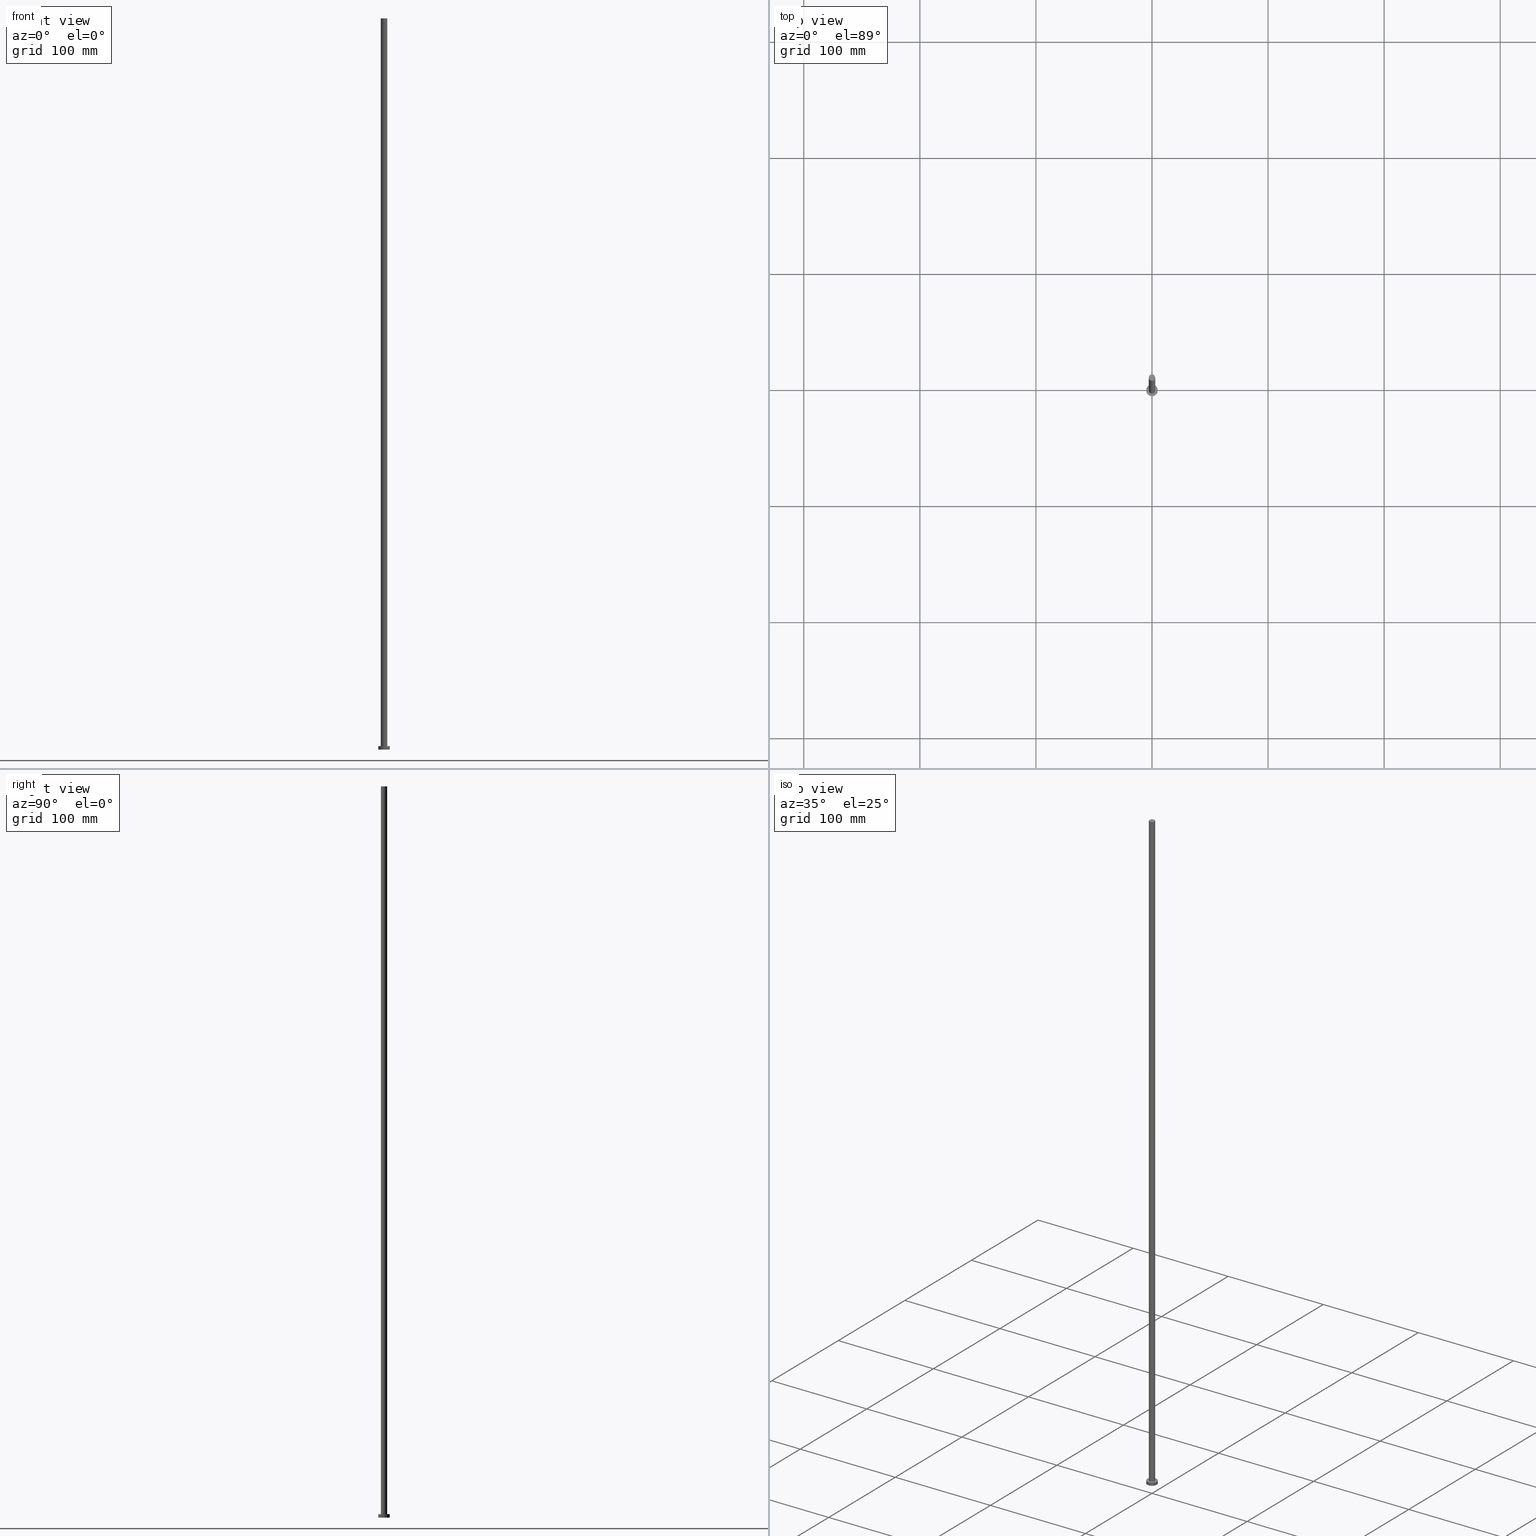
[diagram: canonical four-view strip — front | top / right | iso, engineering-drawing reading convention]
A machine part, canonical four-view strip (front | top / right | iso — engineering-drawing reading convention). The complete STEP part file that produces these views, byte-faithful:
ISO-10303-21;
HEADER;
FILE_DESCRIPTION (( 'STEP AP203' ),
    '1' );
FILE_NAME ('1a65.STEP',
    '2023-02-12T12:20:35',
    ( '' ),
    ( '' ),
    'SwSTEP 2.0',
    'SolidWorks 2019',
    '' );
FILE_SCHEMA (( 'CONFIG_CONTROL_DESIGN' ));
ENDSEC;

DATA;
#1 =( LENGTH_UNIT ( ) NAMED_UNIT ( * ) SI_UNIT ( .MILLI., .METRE. ) );
#2 = VERTEX_POINT ( 'NONE', #206 ) ;
#3 = CIRCLE ( 'NONE', #85, 2.750000000000000000 ) ;
#4 = APPROVAL_PERSON_ORGANIZATION ( #56, #79, #151 ) ;
#5 = DIRECTION ( 'NONE',  ( 1.000000000000000000, 0.000000000000000000, 0.000000000000000000 ) ) ;
#6 = ORIENTED_EDGE ( 'NONE', *, *, #58, .F. ) ;
#7 = APPROVAL ( #190, 'NEUR�EN�' ) ;
#8 = PRODUCT_DEFINITION_SHAPE ( 'NONE', 'NONE',  #134 ) ;
#9 = FACE_OUTER_BOUND ( 'NONE', #200, .T. ) ;
#10 = ORIENTED_EDGE ( 'NONE', *, *, #245, .F. ) ;
#11 = DIRECTION ( 'NONE',  ( 1.000000000000000000, 0.000000000000000000, -0.000000000000000000 ) ) ;
#12 = APPROVAL_DATE_TIME ( #18, #241 ) ;
#13 = AXIS2_PLACEMENT_3D ( 'NONE', #162, #247, #73 ) ;
#14 = DIRECTION ( 'NONE',  ( -0.000000000000000000, -0.000000000000000000, -1.000000000000000000 ) ) ;
#15 = APPROVAL_ROLE ( '' ) ;
#16 = DIRECTION ( 'NONE',  ( 1.000000000000000000, 0.000000000000000000, 0.000000000000000000 ) ) ;
#17 = APPROVAL_PERSON_ORGANIZATION ( #249, #241, #15 ) ;
#18 = DATE_AND_TIME ( #159, #165 ) ;
#19 = ORIENTED_EDGE ( 'NONE', *, *, #24, .F. ) ;
#20 = CALENDAR_DATE ( 2023, 12, 2 ) ;
#21 = DIRECTION ( 'NONE',  ( -1.000000000000000000, 0.000000000000000000, 0.000000000000000000 ) ) ;
#22 = CIRCLE ( 'NONE', #161, 5.000000000000000000 ) ;
#23 = PERSON_AND_ORGANIZATION_ROLE ( 'classification_officer' ) ;
#24 = EDGE_CURVE ( 'NONE', #105, #210, #164, .T. ) ;
#25 = ORIENTED_EDGE ( 'NONE', *, *, #172, .F. ) ;
#26 = CC_DESIGN_DATE_AND_TIME_ASSIGNMENT ( #66, #232, ( #121 ) ) ;
#27 = EDGE_LOOP ( 'NONE', ( #246, #120 ) ) ;
#28 = AXIS2_PLACEMENT_3D ( 'NONE', #150, #86, #11 ) ;
#29 = CC_DESIGN_PERSON_AND_ORGANIZATION_ASSIGNMENT ( #36, #88, ( #52 ) ) ;
#30 = PLANE ( 'NONE',  #28 ) ;
#31 = CARTESIAN_POINT ( 'NONE',  ( 0.000000000000000000, 0.000000000000000000, 0.000000000000000000 ) ) ;
#32 = CYLINDRICAL_SURFACE ( 'NONE', #113, 2.750000000000000000 ) ;
#33 = FACE_BOUND ( 'NONE', #84, .T. ) ;
#34 = AXIS2_PLACEMENT_3D ( 'NONE', #225, #235, #21 ) ;
#35 = COORDINATED_UNIVERSAL_TIME_OFFSET ( 1, 0, .AHEAD. ) ;
#36 = PERSON_AND_ORGANIZATION ( #59, #182 ) ;
#37 = CARTESIAN_POINT ( 'NONE',  ( -5.000000000000000000, 0.000000000000000000, 3.000000000000000000 ) ) ;
#38 = DESIGN_CONTEXT ( 'detailed design', #229, 'design' ) ;
#39 = APPLICATION_PROTOCOL_DEFINITION ( 'international standard', 'config_control_design', 1994, #229 ) ;
#40 =( NAMED_UNIT ( * ) SI_UNIT ( $, .STERADIAN. ) SOLID_ANGLE_UNIT ( ) );
#41 = FACE_OUTER_BOUND ( 'NONE', #144, .T. ) ;
#42 = ORIENTED_EDGE ( 'NONE', *, *, #186, .F. ) ;
#43 = ORIENTED_EDGE ( 'NONE', *, *, #75, .F. ) ;
#44 = CC_DESIGN_APPROVAL ( #7, ( #134 ) ) ;
#45 = DIRECTION ( 'NONE',  ( 0.000000000000000000, 0.000000000000000000, 1.000000000000000000 ) ) ;
#46 = EDGE_CURVE ( 'NONE', #2, #187, #3, .T. ) ;
#47 = LOCAL_TIME ( 13, 20, 35.00000000000000000, #76 ) ;
#48 = CC_DESIGN_PERSON_AND_ORGANIZATION_ASSIGNMENT ( #118, #202, ( #112 ) ) ;
#49 = CARTESIAN_POINT ( 'NONE',  ( 0.000000000000000000, 0.000000000000000000, 3.000000000000000000 ) ) ;
#50 = APPROVAL_STATUS ( 'not_yet_approved' ) ;
#51 = CARTESIAN_POINT ( 'NONE',  ( 0.000000000000000000, 0.000000000000000000, 630.0000000000000000 ) ) ;
#52 = PRODUCT ( '1a65', '1a65', '', ( #175 ) ) ;
#53 = LINE ( 'NONE', #139, #158 ) ;
#54 = CARTESIAN_POINT ( 'NONE',  ( 2.750000000000000000, 3.367778697655221012E-16, 630.0000000000000000 ) ) ;
#55 = VECTOR ( 'NONE', #193, 1000.000000000000000 ) ;
#56 = PERSON_AND_ORGANIZATION ( #59, #182 ) ;
#57 = APPROVAL_DATE_TIME ( #132, #7 ) ;
#58 = EDGE_CURVE ( 'NONE', #210, #105, #211, .T. ) ;
#59 = PERSON ( 'NEUR�EN�', 'NEUR�EN�', 'NEUR�EN�', ('NEUR�EN�'), ('NEUR�EN�'), ('NEUR�EN�') ) ;
#60 = ORIENTED_EDGE ( 'NONE', *, *, #58, .T. ) ;
#61 = AXIS2_PLACEMENT_3D ( 'NONE', #31, #156, #234 ) ;
#62 = DIRECTION ( 'NONE',  ( 0.000000000000000000, 0.000000000000000000, 1.000000000000000000 ) ) ;
#63 = CARTESIAN_POINT ( 'NONE',  ( -5.000000000000000000, 0.000000000000000000, 0.000000000000000000 ) ) ;
#64 = AXIS2_PLACEMENT_3D ( 'NONE', #243, #183, #5 ) ;
#65 = CARTESIAN_POINT ( 'NONE',  ( 2.750000000000000000, 3.367778697655221012E-16, 630.0000000000000000 ) ) ;
#66 = DATE_AND_TIME ( #198, #87 ) ;
#67 = DIRECTION ( 'NONE',  ( -1.000000000000000000, 0.000000000000000000, 0.000000000000000000 ) ) ;
#68 = CARTESIAN_POINT ( 'NONE',  ( 0.000000000000000000, 0.000000000000000000, 630.0000000000000000 ) ) ;
#69 = CC_DESIGN_PERSON_AND_ORGANIZATION_ASSIGNMENT ( #72, #23, ( #121 ) ) ;
#70 = CC_DESIGN_APPROVAL ( #241, ( #121 ) ) ;
#71 = CC_DESIGN_DATE_AND_TIME_ASSIGNMENT ( #254, #114, ( #134 ) ) ;
#72 = PERSON_AND_ORGANIZATION ( #59, #182 ) ;
#73 = DIRECTION ( 'NONE',  ( 1.000000000000000000, 0.000000000000000000, 0.000000000000000000 ) ) ;
#74 = VERTEX_POINT ( 'NONE', #63 ) ;
#75 = EDGE_CURVE ( 'NONE', #188, #230, #148, .T. ) ;
#76 = COORDINATED_UNIVERSAL_TIME_OFFSET ( 1, 0, .AHEAD. ) ;
#77 = ORIENTED_EDGE ( 'NONE', *, *, #196, .F. ) ;
#78 = APPROVAL_PERSON_ORGANIZATION ( #141, #7, #116 ) ;
#79 = APPROVAL ( #178, 'NEUR�EN�' ) ;
#80 = EDGE_LOOP ( 'NONE', ( #83, #100, #125, #168 ) ) ;
#81 = DIRECTION ( 'NONE',  ( 1.000000000000000000, 0.000000000000000000, 0.000000000000000000 ) ) ;
#82 = AXIS2_PLACEMENT_3D ( 'NONE', #51, #214, #212 ) ;
#83 = ORIENTED_EDGE ( 'NONE', *, *, #126, .F. ) ;
#84 = EDGE_LOOP ( 'NONE', ( #19, #6 ) ) ;
#85 = AXIS2_PLACEMENT_3D ( 'NONE', #184, #147, #81 ) ;
#86 = DIRECTION ( 'NONE',  ( 0.000000000000000000, 0.000000000000000000, 1.000000000000000000 ) ) ;
#87 = LOCAL_TIME ( 13, 20, 35.00000000000000000, #35 ) ;
#88 = PERSON_AND_ORGANIZATION_ROLE ( 'design_owner' ) ;
#89 = DIRECTION ( 'NONE',  ( 1.000000000000000000, 0.000000000000000000, 0.000000000000000000 ) ) ;
#90 = CALENDAR_DATE ( 2023, 12, 2 ) ;
#91 = ADVANCED_FACE ( 'NONE', ( #9 ), #167, .T. ) ;
#92 = DIRECTION ( 'NONE',  ( 0.000000000000000000, 0.000000000000000000, 1.000000000000000000 ) ) ;
#93 = APPLICATION_PROTOCOL_DEFINITION ( 'international standard', 'config_control_design', 1994, #142 ) ;
#94 = ORIENTED_EDGE ( 'NONE', *, *, #101, .T. ) ;
#95 = PERSON_AND_ORGANIZATION_ROLE ( 'creator' ) ;
#96 = LOCAL_TIME ( 13, 20, 35.00000000000000000, #109 ) ;
#97 = LINE ( 'NONE', #255, #237 ) ;
#98 = ORIENTED_EDGE ( 'NONE', *, *, #46, .F. ) ;
#99 = ORIENTED_EDGE ( 'NONE', *, *, #24, .T. ) ;
#100 = ORIENTED_EDGE ( 'NONE', *, *, #245, .T. ) ;
#101 = EDGE_CURVE ( 'NONE', #2, #105, #53, .T. ) ;
#102 = ORIENTED_EDGE ( 'NONE', *, *, #140, .F. ) ;
#103 = ADVANCED_BREP_SHAPE_REPRESENTATION ( '1a65', ( #180, #13 ), #169 ) ;
#104 = DIRECTION ( 'NONE',  ( 1.000000000000000000, 0.000000000000000000, 0.000000000000000000 ) ) ;
#105 = VERTEX_POINT ( 'NONE', #128 ) ;
#106 = DIRECTION ( 'NONE',  ( -1.000000000000000000, 0.000000000000000000, 0.000000000000000000 ) ) ;
#107 = CIRCLE ( 'NONE', #133, 5.000000000000000000 ) ;
#108 = CYLINDRICAL_SURFACE ( 'NONE', #177, 5.000000000000000000 ) ;
#109 = COORDINATED_UNIVERSAL_TIME_OFFSET ( 1, 0, .AHEAD. ) ;
#110 = DIRECTION ( 'NONE',  ( 1.000000000000000000, 0.000000000000000000, -0.000000000000000000 ) ) ;
#111 = FACE_OUTER_BOUND ( 'NONE', #122, .T. ) ;
#112 = PRODUCT_DEFINITION_FORMATION_WITH_SPECIFIED_SOURCE ( 'LIBOVOLN�', '', #52, .NOT_KNOWN. ) ;
#113 = AXIS2_PLACEMENT_3D ( 'NONE', #197, #220, #119 ) ;
#114 = DATE_TIME_ROLE ( 'creation_date' ) ;
#115 = CYLINDRICAL_SURFACE ( 'NONE', #34, 2.750000000000000000 ) ;
#116 = APPROVAL_ROLE ( '' ) ;
#117 = CARTESIAN_POINT ( 'NONE',  ( 5.000000000000000000, 6.123233995736766282E-16, 3.000000000000000000 ) ) ;
#118 = PERSON_AND_ORGANIZATION ( #59, #182 ) ;
#119 = DIRECTION ( 'NONE',  ( -1.000000000000000000, 0.000000000000000000, 0.000000000000000000 ) ) ;
#120 = ORIENTED_EDGE ( 'NONE', *, *, #196, .T. ) ;
#121 = SECURITY_CLASSIFICATION ( '', '', #153 ) ;
#122 = EDGE_LOOP ( 'NONE', ( #124, #227 ) ) ;
#123 = ADVANCED_FACE ( 'NONE', ( #152 ), #108, .T. ) ;
#124 = ORIENTED_EDGE ( 'NONE', *, *, #75, .T. ) ;
#125 = ORIENTED_EDGE ( 'NONE', *, *, #140, .T. ) ;
#126 = EDGE_CURVE ( 'NONE', #230, #188, #107, .T. ) ;
#127 = PRODUCT_RELATED_PRODUCT_CATEGORY ( 'detail', '', ( #52 ) ) ;
#128 = CARTESIAN_POINT ( 'NONE',  ( -2.750000000000000000, 0.000000000000000000, 3.000000000000000000 ) ) ;
#129 = SHAPE_DEFINITION_REPRESENTATION ( #8, #103 ) ;
#130 = CARTESIAN_POINT ( 'NONE',  ( 0.000000000000000000, 0.000000000000000000, 3.000000000000000000 ) ) ;
#131 = CC_DESIGN_PERSON_AND_ORGANIZATION_ASSIGNMENT ( #171, #194, ( #112 ) ) ;
#132 = DATE_AND_TIME ( #236, #216 ) ;
#133 = AXIS2_PLACEMENT_3D ( 'NONE', #130, #92, #16 ) ;
#134 = PRODUCT_DEFINITION ( 'NEZN�M�', '', #112, #38 ) ;
#135 = DIRECTION ( 'NONE',  ( -0.000000000000000000, -0.000000000000000000, -1.000000000000000000 ) ) ;
#136 = CC_DESIGN_SECURITY_CLASSIFICATION ( #121, ( #112 ) ) ;
#137 = CARTESIAN_POINT ( 'NONE',  ( 0.000000000000000000, 0.000000000000000000, 0.000000000000000000 ) ) ;
#138 = ADVANCED_FACE ( 'NONE', ( #251 ), #155, .F. ) ;
#139 = CARTESIAN_POINT ( 'NONE',  ( -2.750000000000000000, 0.000000000000000000, 630.0000000000000000 ) ) ;
#140 = EDGE_CURVE ( 'NONE', #221, #74, #215, .T. ) ;
#141 = PERSON_AND_ORGANIZATION ( #59, #182 ) ;
#142 = APPLICATION_CONTEXT ( 'configuration controlled 3d designs of mechanical parts and assemblies' ) ;
#143 = ORIENTED_EDGE ( 'NONE', *, *, #172, .T. ) ;
#144 = EDGE_LOOP ( 'NONE', ( #42, #98, #94, #99 ) ) ;
#145 = DIRECTION ( 'NONE',  ( 1.000000000000000000, 0.000000000000000000, 0.000000000000000000 ) ) ;
#146 = CARTESIAN_POINT ( 'NONE',  ( 0.000000000000000000, 0.000000000000000000, 3.000000000000000000 ) ) ;
#147 = DIRECTION ( 'NONE',  ( 0.000000000000000000, 0.000000000000000000, 1.000000000000000000 ) ) ;
#148 = CIRCLE ( 'NONE', #219, 5.000000000000000000 ) ;
#149 = VECTOR ( 'NONE', #199, 1000.000000000000000 ) ;
#150 = CARTESIAN_POINT ( 'NONE',  ( 0.000000000000000000, 0.000000000000000000, 3.000000000000000000 ) ) ;
#151 = APPROVAL_ROLE ( '' ) ;
#152 = FACE_OUTER_BOUND ( 'NONE', #80, .T. ) ;
#153 = SECURITY_CLASSIFICATION_LEVEL ( 'unclassified' ) ;
#154 = DIRECTION ( 'NONE',  ( 0.000000000000000000, 0.000000000000000000, 1.000000000000000000 ) ) ;
#155 = PLANE ( 'NONE',  #61 ) ;
#156 = DIRECTION ( 'NONE',  ( 0.000000000000000000, 0.000000000000000000, 1.000000000000000000 ) ) ;
#157 = COORDINATED_UNIVERSAL_TIME_OFFSET ( 1, 0, .AHEAD. ) ;
#158 = VECTOR ( 'NONE', #189, 1000.000000000000000 ) ;
#159 = CALENDAR_DATE ( 2023, 12, 2 ) ;
#160 = LINE ( 'NONE', #37, #149 ) ;
#161 = AXIS2_PLACEMENT_3D ( 'NONE', #170, #233, #89 ) ;
#162 = CARTESIAN_POINT ( 'NONE',  ( 0.000000000000000000, 0.000000000000000000, 0.000000000000000000 ) ) ;
#163 = CARTESIAN_POINT ( 'NONE',  ( 2.750000000000000000, 3.367778697655221012E-16, 3.000000000000000000 ) ) ;
#164 = CIRCLE ( 'NONE', #205, 2.750000000000000000 ) ;
#165 = LOCAL_TIME ( 13, 20, 35.00000000000000000, #157 ) ;
#166 = ORIENTED_EDGE ( 'NONE', *, *, #186, .T. ) ;
#167 = CYLINDRICAL_SURFACE ( 'NONE', #191, 5.000000000000000000 ) ;
#168 = ORIENTED_EDGE ( 'NONE', *, *, #223, .F. ) ;
#169 =( GEOMETRIC_REPRESENTATION_CONTEXT ( 3 ) GLOBAL_UNCERTAINTY_ASSIGNED_CONTEXT ( ( #238 ) ) GLOBAL_UNIT_ASSIGNED_CONTEXT ( ( #1, #203, #40 ) ) REPRESENTATION_CONTEXT ( 'NONE', 'WORKASPACE' ) );
#170 = CARTESIAN_POINT ( 'NONE',  ( 0.000000000000000000, 0.000000000000000000, 0.000000000000000000 ) ) ;
#171 = PERSON_AND_ORGANIZATION ( #59, #182 ) ;
#172 = EDGE_CURVE ( 'NONE', #74, #221, #22, .T. ) ;
#173 = FACE_OUTER_BOUND ( 'NONE', #27, .T. ) ;
#174 = CLOSED_SHELL ( 'NONE', ( #208, #123, #91, #204, #138, #248, #207 ) ) ;
#175 = MECHANICAL_CONTEXT ( 'NONE', #142, 'mechanical' ) ;
#176 = DIRECTION ( 'NONE',  ( 0.000000000000000000, 0.000000000000000000, 1.000000000000000000 ) ) ;
#177 = AXIS2_PLACEMENT_3D ( 'NONE', #49, #135, #67 ) ;
#178 = APPROVAL_STATUS ( 'not_yet_approved' ) ;
#179 = CC_DESIGN_PERSON_AND_ORGANIZATION_ASSIGNMENT ( #222, #95, ( #134 ) ) ;
#180 = MANIFOLD_SOLID_BREP ( 'P�idat vysunut�m3', #174 ) ;
#181 = ORIENTED_EDGE ( 'NONE', *, *, #223, .T. ) ;
#182 = ORGANIZATION ( 'NEUR�EN�', 'NEUR�EN�', '' ) ;
#183 = DIRECTION ( 'NONE',  ( 0.000000000000000000, 0.000000000000000000, 1.000000000000000000 ) ) ;
#184 = CARTESIAN_POINT ( 'NONE',  ( 0.000000000000000000, 0.000000000000000000, 630.0000000000000000 ) ) ;
#185 = CC_DESIGN_APPROVAL ( #79, ( #112 ) ) ;
#186 = EDGE_CURVE ( 'NONE', #187, #210, #252, .T. ) ;
#187 = VERTEX_POINT ( 'NONE', #65 ) ;
#188 = VERTEX_POINT ( 'NONE', #218 ) ;
#189 = DIRECTION ( 'NONE',  ( -0.000000000000000000, -0.000000000000000000, -1.000000000000000000 ) ) ;
#190 = APPROVAL_STATUS ( 'not_yet_approved' ) ;
#191 = AXIS2_PLACEMENT_3D ( 'NONE', #244, #14, #106 ) ;
#192 = AXIS2_PLACEMENT_3D ( 'NONE', #68, #154, #110 ) ;
#193 = DIRECTION ( 'NONE',  ( -0.000000000000000000, -0.000000000000000000, -1.000000000000000000 ) ) ;
#194 = PERSON_AND_ORGANIZATION_ROLE ( 'creator' ) ;
#195 = FACE_OUTER_BOUND ( 'NONE', #209, .T. ) ;
#196 = EDGE_CURVE ( 'NONE', #187, #2, #231, .T. ) ;
#197 = CARTESIAN_POINT ( 'NONE',  ( 0.000000000000000000, 0.000000000000000000, 630.0000000000000000 ) ) ;
#198 = CALENDAR_DATE ( 2023, 12, 2 ) ;
#199 = DIRECTION ( 'NONE',  ( -0.000000000000000000, -0.000000000000000000, -1.000000000000000000 ) ) ;
#200 = EDGE_LOOP ( 'NONE', ( #10, #43, #181, #143 ) ) ;
#201 = DIRECTION ( 'NONE',  ( -0.000000000000000000, -0.000000000000000000, -1.000000000000000000 ) ) ;
#202 = PERSON_AND_ORGANIZATION_ROLE ( 'design_supplier' ) ;
#203 =( NAMED_UNIT ( * ) PLANE_ANGLE_UNIT ( ) SI_UNIT ( $, .RADIAN. ) );
#204 = ADVANCED_FACE ( 'NONE', ( #33, #111 ), #30, .T. ) ;
#205 = AXIS2_PLACEMENT_3D ( 'NONE', #242, #62, #145 ) ;
#206 = CARTESIAN_POINT ( 'NONE',  ( -2.750000000000000000, 0.000000000000000000, 630.0000000000000000 ) ) ;
#207 = ADVANCED_FACE ( 'NONE', ( #173 ), #250, .T. ) ;
#208 = ADVANCED_FACE ( 'NONE', ( #195 ), #32, .T. ) ;
#209 = EDGE_LOOP ( 'NONE', ( #77, #166, #60, #239 ) ) ;
#210 = VERTEX_POINT ( 'NONE', #163 ) ;
#211 = CIRCLE ( 'NONE', #64, 2.750000000000000000 ) ;
#212 = DIRECTION ( 'NONE',  ( 1.000000000000000000, 0.000000000000000000, 0.000000000000000000 ) ) ;
#213 = COORDINATED_UNIVERSAL_TIME_OFFSET ( 1, 0, .AHEAD. ) ;
#214 = DIRECTION ( 'NONE',  ( 0.000000000000000000, 0.000000000000000000, 1.000000000000000000 ) ) ;
#215 = CIRCLE ( 'NONE', #240, 5.000000000000000000 ) ;
#216 = LOCAL_TIME ( 13, 20, 35.00000000000000000, #213 ) ;
#217 = DIRECTION ( 'NONE',  ( 1.000000000000000000, 0.000000000000000000, 0.000000000000000000 ) ) ;
#218 = CARTESIAN_POINT ( 'NONE',  ( -5.000000000000000000, 0.000000000000000000, 3.000000000000000000 ) ) ;
#219 = AXIS2_PLACEMENT_3D ( 'NONE', #146, #45, #104 ) ;
#220 = DIRECTION ( 'NONE',  ( -0.000000000000000000, -0.000000000000000000, -1.000000000000000000 ) ) ;
#221 = VERTEX_POINT ( 'NONE', #226 ) ;
#222 = PERSON_AND_ORGANIZATION ( #59, #182 ) ;
#223 = EDGE_CURVE ( 'NONE', #188, #74, #160, .T. ) ;
#224 = DATE_AND_TIME ( #90, #47 ) ;
#225 = CARTESIAN_POINT ( 'NONE',  ( 0.000000000000000000, 0.000000000000000000, 630.0000000000000000 ) ) ;
#226 = CARTESIAN_POINT ( 'NONE',  ( 5.000000000000000000, 6.123233995736766282E-16, 0.000000000000000000 ) ) ;
#227 = ORIENTED_EDGE ( 'NONE', *, *, #126, .T. ) ;
#228 = EDGE_LOOP ( 'NONE', ( #25, #102 ) ) ;
#229 = APPLICATION_CONTEXT ( 'configuration controlled 3d designs of mechanical parts and assemblies' ) ;
#230 = VERTEX_POINT ( 'NONE', #117 ) ;
#231 = CIRCLE ( 'NONE', #82, 2.750000000000000000 ) ;
#232 = DATE_TIME_ROLE ( 'classification_date' ) ;
#233 = DIRECTION ( 'NONE',  ( 0.000000000000000000, 0.000000000000000000, 1.000000000000000000 ) ) ;
#234 = DIRECTION ( 'NONE',  ( 1.000000000000000000, 0.000000000000000000, -0.000000000000000000 ) ) ;
#235 = DIRECTION ( 'NONE',  ( -0.000000000000000000, -0.000000000000000000, -1.000000000000000000 ) ) ;
#236 = CALENDAR_DATE ( 2023, 12, 2 ) ;
#237 = VECTOR ( 'NONE', #201, 1000.000000000000000 ) ;
#238 = UNCERTAINTY_MEASURE_WITH_UNIT (LENGTH_MEASURE( 1.000000000000000082E-05 ), #1, 'distance_accuracy_value', 'NONE');
#239 = ORIENTED_EDGE ( 'NONE', *, *, #101, .F. ) ;
#240 = AXIS2_PLACEMENT_3D ( 'NONE', #137, #176, #217 ) ;
#241 = APPROVAL ( #50, 'NEUR�EN�' ) ;
#242 = CARTESIAN_POINT ( 'NONE',  ( 0.000000000000000000, 0.000000000000000000, 3.000000000000000000 ) ) ;
#243 = CARTESIAN_POINT ( 'NONE',  ( 0.000000000000000000, 0.000000000000000000, 3.000000000000000000 ) ) ;
#244 = CARTESIAN_POINT ( 'NONE',  ( 0.000000000000000000, 0.000000000000000000, 3.000000000000000000 ) ) ;
#245 = EDGE_CURVE ( 'NONE', #230, #221, #97, .T. ) ;
#246 = ORIENTED_EDGE ( 'NONE', *, *, #46, .T. ) ;
#247 = DIRECTION ( 'NONE',  ( 0.000000000000000000, 0.000000000000000000, 1.000000000000000000 ) ) ;
#248 = ADVANCED_FACE ( 'NONE', ( #41 ), #115, .T. ) ;
#249 = PERSON_AND_ORGANIZATION ( #59, #182 ) ;
#250 = PLANE ( 'NONE',  #192 ) ;
#251 = FACE_OUTER_BOUND ( 'NONE', #228, .T. ) ;
#252 = LINE ( 'NONE', #54, #55 ) ;
#253 = APPROVAL_DATE_TIME ( #224, #79 ) ;
#254 = DATE_AND_TIME ( #20, #96 ) ;
#255 = CARTESIAN_POINT ( 'NONE',  ( 5.000000000000000000, 6.123233995736766282E-16, 3.000000000000000000 ) ) ;
ENDSEC;
END-ISO-10303-21;
